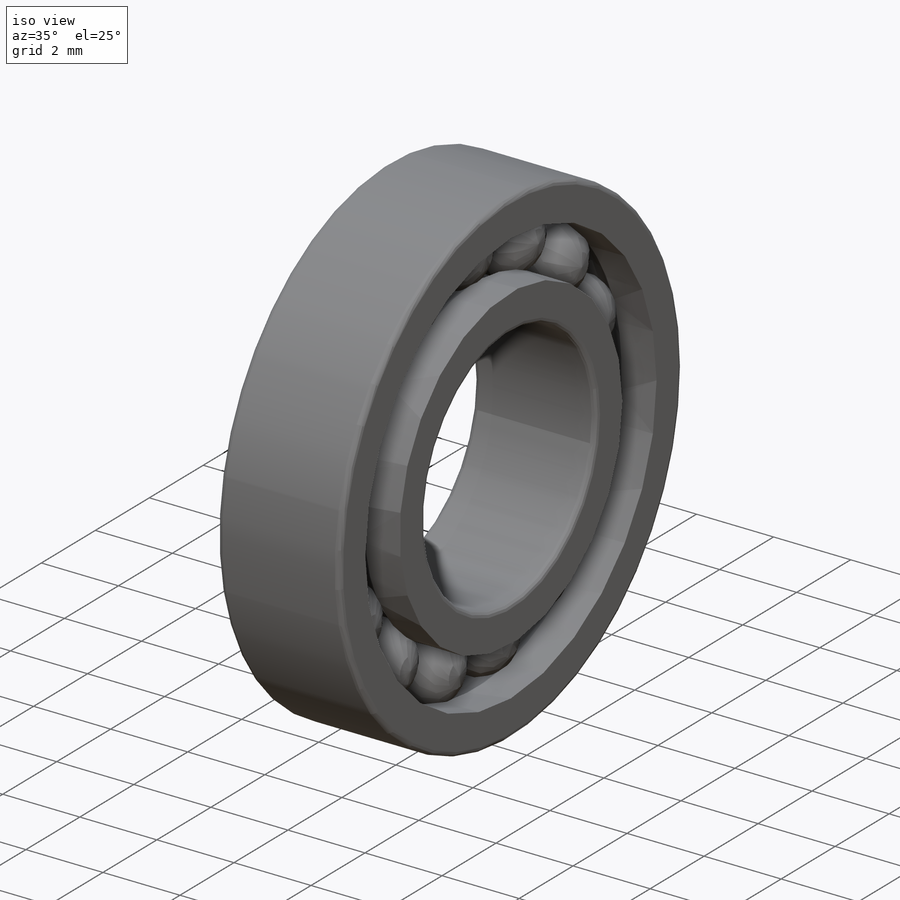
[diagram: iso view]
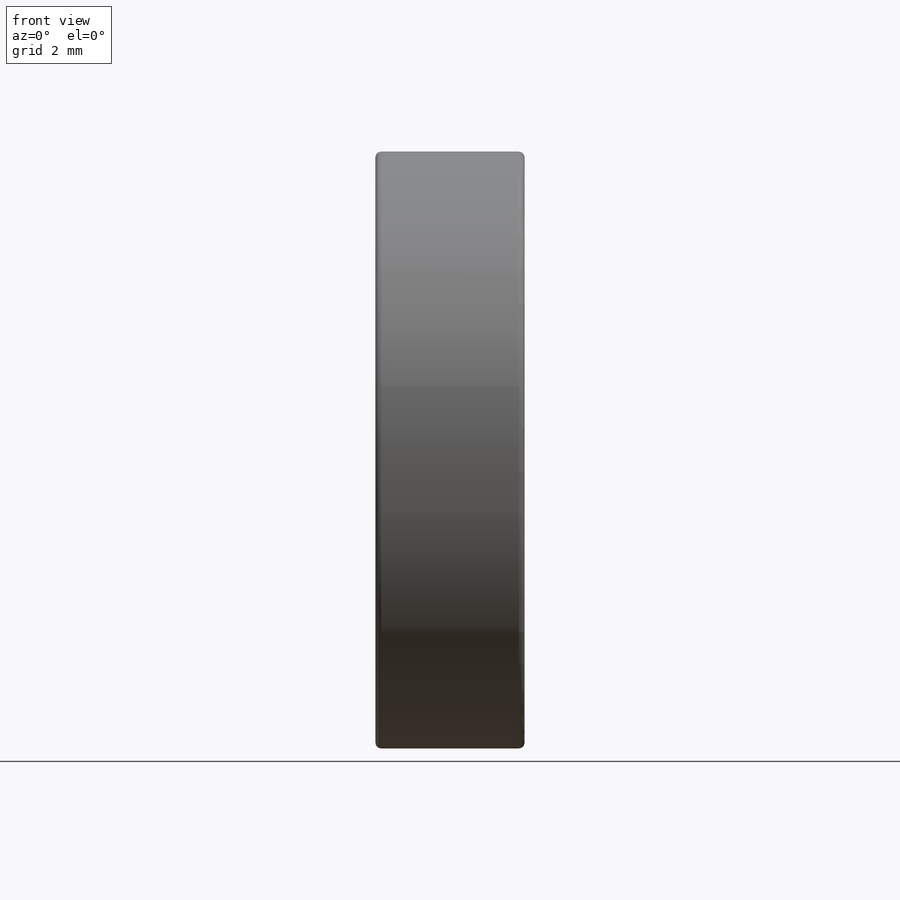
[diagram: front view]
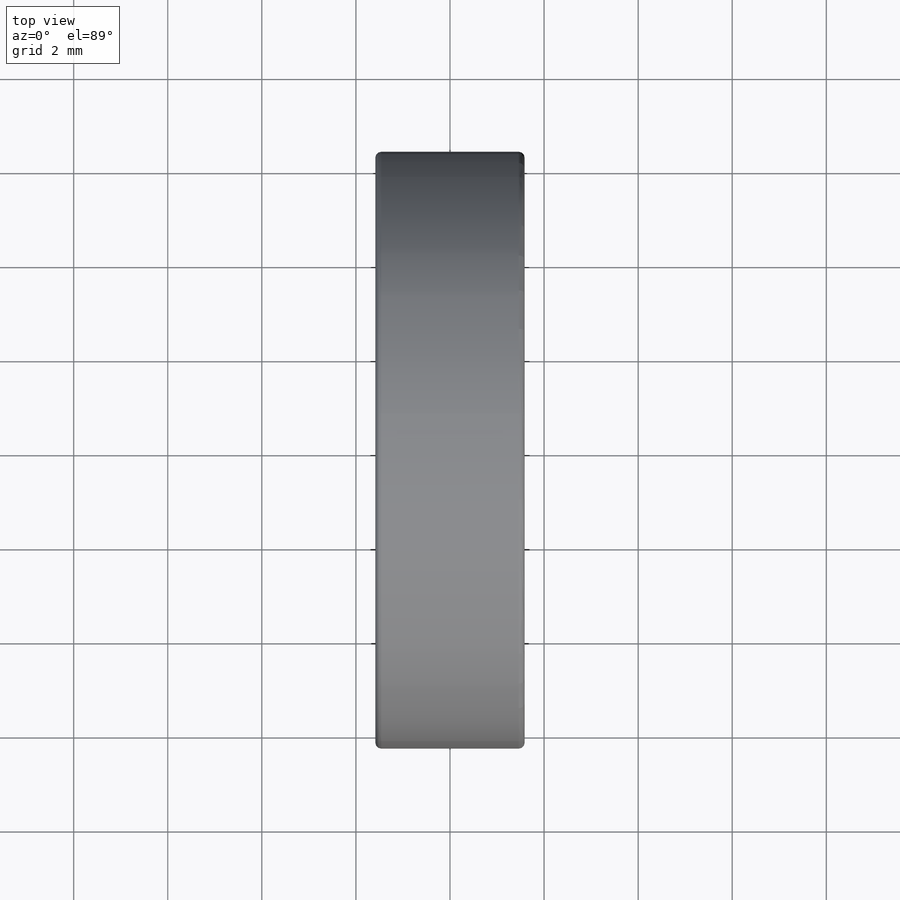
[diagram: top view]
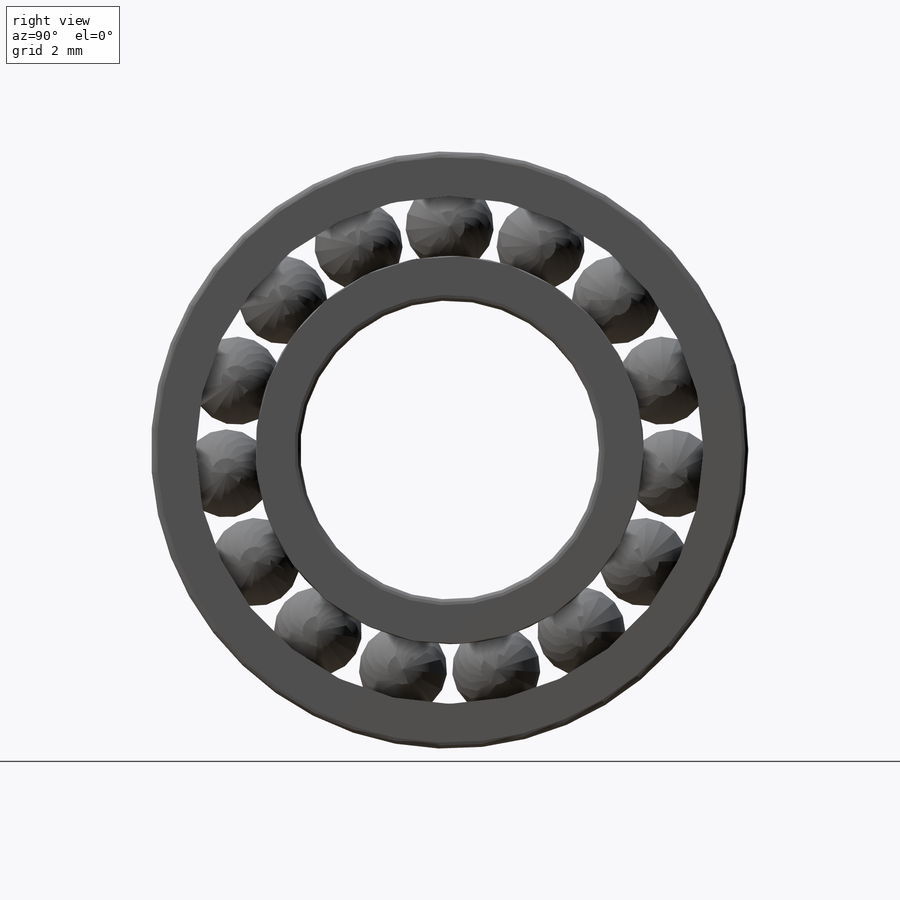
[diagram: right view]
SOLIDWORKS PART (.sldprt)
format: sldprt  version: not decoded by parser v0  size: 657,920 bytes
history: native  units: mm
features: sketch x9, revolve x6, plane x3, pattern_circular x2, cut_revolve x2, material x1 (+8 scaffold rows collapsed)
feature tree (31):
  scaffold x8  (default folders/planes/origin — collapsed)
  material  "Material <not specified>"
  plane  "Plane1"
  plane  "Plane2"
  plane  "Plane3"
  sketch  "Clipboard"  dims[c1.BallCLRad=22.225mm c2.BallCLRad=4.7625mm c2.D2=20.0mm c2.Count=359.0deg c2.D3=~22.36068mm c2.Show_count=359.0deg c2.D1=20.0mm c2.Max_count=15.0deg c3.D1=20.0mm c3.Min_count=1.0deg]
  sketch  "CagSpiSke"  dims[Thickness=0.1905mm OD=9.8425mm ID=9.2075mm]
  revolve  "CageSpine"  Angle=0.001deg
  sketch  "CagBalSke"  dims[CageWallOD=2.0955mm BallCLRad=4.7625mm]
  revolve  "CageBall"  Angle=360deg
  pattern_circular  "CageBalls"  Count=15 Angle=24deg
  sketch  "CagTrmODSke"  dims[Width=2.0975mm ID=9.8425mm OD=11.6225mm]
  cut_revolve  "CageTrimOD"  Angle=360deg
  sketch  "CagTrmIDSke"  dims[ID=7.4315mm OD=9.2075mm Width=2.0975mm D1=360.0deg]
  sketch  "BalSimSke"  dims[Ball_diameter=1.905mm BallCLRad=4.7625mm]
  revolve  "BallsSimplified"  Angle=360deg
  sketch  "BalDetSke"  dims[Ball_diameter=1.905mm BallCLRad=4.7625mm]
  revolve  "BallDetailed"  Angle=360deg
  sketch  "InnRacSke"  dims[Fillet_radius=0.127mm Ball_diameter=1.855mm ID=6.35mm OD=8.255mm Width=3.175mm BallCLRad=4.7625mm]
  revolve  "InnerRace"  Angle=360deg
  sketch  "OutRacSke"  dims[Fillet_radius=0.127mm Ball_diameter=1.855mm OD=12.7mm ID=10.795mm Width=3.175mm BallCLRad=4.7625mm]
  revolve  "OuterRace"  Angle=360deg
  pattern_circular  "BallsDetailed"  Count=15 Angle=24deg CurrentVersion=0mm EditFunction=0mm Type=0mm SubType=0mm Application=0mm STANDARD=0mm TYPE=0mm SIZE=0mm DRAW_CAGE=0mm AUTO_SAVE=0mm CREATION_METHOD=0mm LOCATION_METHOD=0mm
  cut_revolve  "CimBearingSettings6.0"  STANDARD=0mm TYPE=0mm SIZE=0mm DRAW_CAGE=0mm AUTO_SAVE=0mm CREATION_METHOD=0mm LOCATION_METHOD=0mm  [1 undecoded]
decode coverage: 19 of 19 modeling features carry decoded parameters
note: ~ marks probable driven/reference dimensions
note: 1 parameter value undecoded
note: suppression state not decoded; provenance and decode notes live in map.json
